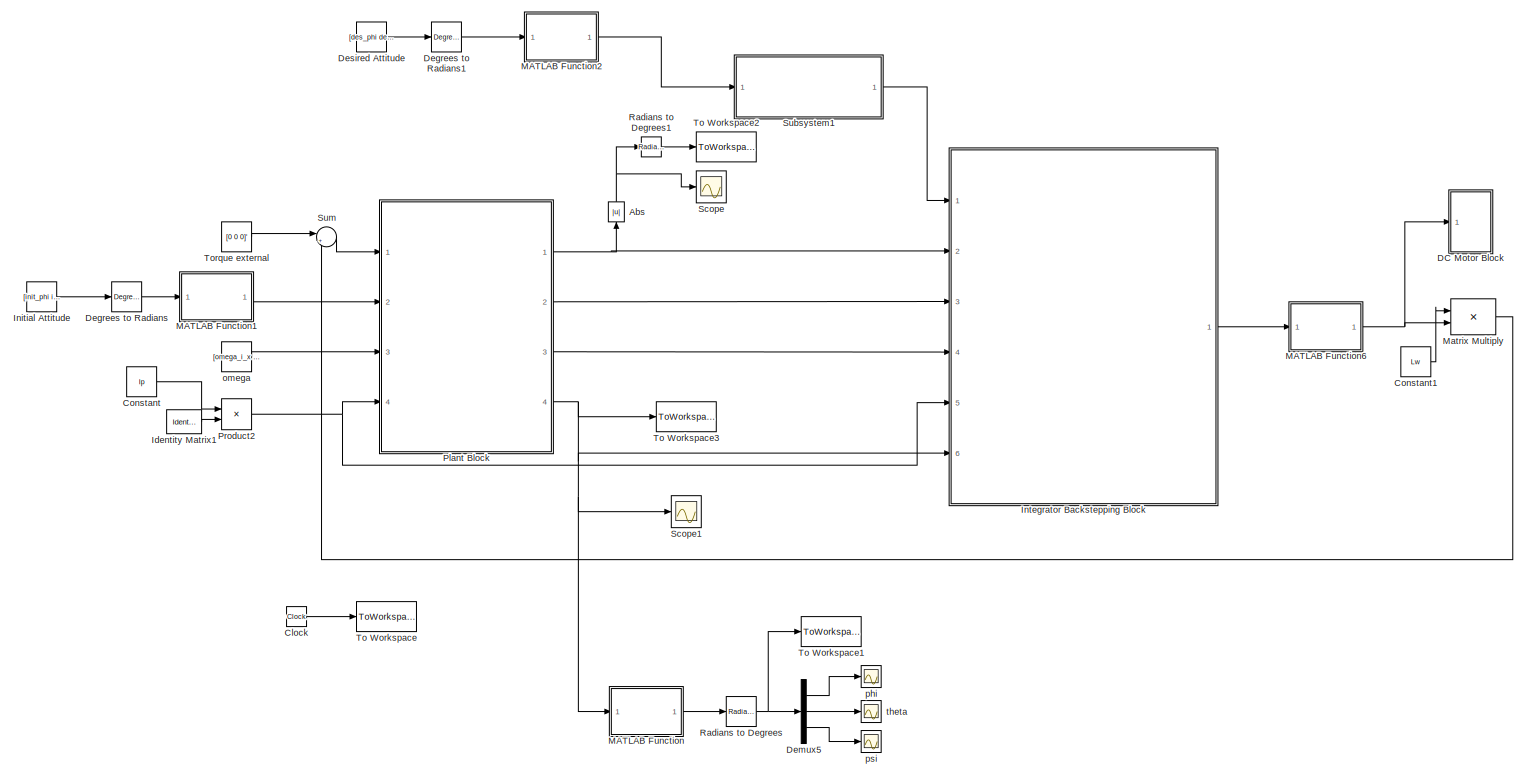
[diagram: root canvas - part 1/1, most of the canvas]
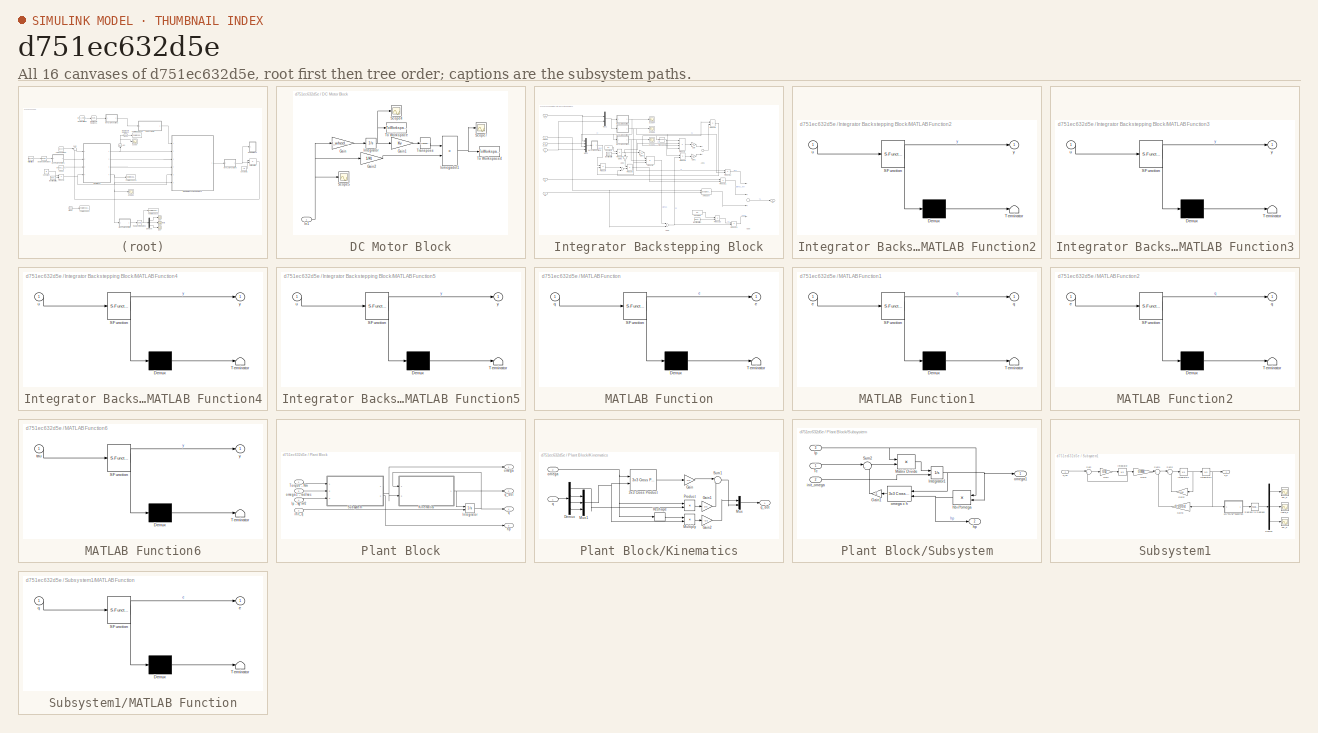
[diagram: thumbnail index - all 16 canvases of the model, root first then tree order]
MODEL slx_d751ec632d5e
KIND model
CONFIG AbsTol = auto
CONFIG EnableMultiTasking = off
CONFIG FixedStep = 1/Ts
CONFIG MaxStep = auto
CONFIG MinStep = auto
CONFIG RelTol = 1e-3
CONFIG SampleTimeConstraint = Unconstrained
CONFIG Solver = VariableStepAuto
CONFIG SolverName = VariableStepAuto
CONFIG StartTime = 0.0
CONFIG StopTime = Tmax
BLOCK [Abs] Abs
  SaturateOnIntegerOverflow = off
BLOCK [Clock] Clock
BLOCK [Constant] Constant
  Value = Ip
BLOCK [Constant] Constant1
  Value = Lw
BLOCK [SubSystem] DC Motor Block
  Ports = [1]
  RequestExecContextInheritance = off
BLOCK [Gain] DC Motor Block/Gain
  Gain = I_wheel/I_motor
  OutDataTypeStr = Inherit: Inherit via internal rule
  ParamDataTypeStr = Inherit: Inherit via internal rule
  SaturateOnIntegerOverflow = off
BLOCK [Gain] DC Motor Block/Gain1
  Gain = Kv
  OutDataTypeStr = Inherit: Inherit via internal rule
  ParamDataTypeStr = Inherit: Inherit via internal rule
  SaturateOnIntegerOverflow = off
BLOCK [Gain] DC Motor Block/Gain2
  Gain = 1/Kt
  OutDataTypeStr = Inherit: Inherit via internal rule
  ParamDataTypeStr = Inherit: Inherit via internal rule
  SaturateOnIntegerOverflow = off
BLOCK [Inport] DC Motor Block/In1
  IconDisplay = Port number
BLOCK [Integrator] DC Motor Block/Integrator
  Ports = [1, 1]
BLOCK [Product] DC Motor Block/Iomegadot1
  InputSameDT = off
  Multiplication = Matrix(*)
  OutDataTypeStr = Inherit: Inherit via internal rule
  Ports = [2, 1]
  RndMeth = Floor
  SaturateOnIntegerOverflow = off
BLOCK [Scope] DC Motor Block/Scope4
  Floating = off
  NumInputPorts = 1
  Ports = [1]
  ScopeSpecificationString = Simulink.scopes.TimeScopeBlockCfg('CurrentConfiguration', extmgr.ConfigurationSet(extmgr.Configuration('Core','General UI',true),extmgr.Configuration('Core','Source UI',true),extmgr.Configuration('Sources','WiredSimulink',true,'DataLoggingVariableName','ScopeData1'),extmgr.Configuration('Visuals','Time Domain',true,'SerializedDisplays',{struct('MinYLimReal','-128.41253','MaxYLimReal','172.76244','...<+1430ch>
BLOCK [Scope] DC Motor Block/Scope5
  Floating = off
  NumInputPorts = 1
  Ports = [1]
  ScopeSpecificationString = Simulink.scopes.TimeScopeBlockCfg('CurrentConfiguration', extmgr.ConfigurationSet(extmgr.Configuration('Core','General UI',true),extmgr.Configuration('Core','Source UI',true),extmgr.Configuration('Sources','WiredSimulink',true,'DataLoggingVariableName','ScopeData2'),extmgr.Configuration('Visuals','Time Domain',true,'SerializedDisplays',{struct('MinYLimReal','-0.00116','MaxYLimReal','0.00107','YLab...<+1407ch>
BLOCK [Scope] DC Motor Block/Scope7
  Floating = off
  NumInputPorts = 1
  Ports = [1]
  ScopeSpecificationString = Simulink.scopes.TimeScopeBlockCfg('CurrentConfiguration', extmgr.ConfigurationSet(extmgr.Configuration('Core','General UI',true),extmgr.Configuration('Core','Source UI',true),extmgr.Configuration('Sources','WiredSimulink',true,'DataLoggingVariableName','ScopeData4'),extmgr.Configuration('Visuals','Time Domain',true,'SerializedDisplays',{struct('MinYLimReal','-0.18076','MaxYLimReal','0.16852','YLab...<+1369ch>
BLOCK [ToWorkspace] DC Motor Block/To Workspace
  FixptAsFi = on
  MaxDataPoints = inf
  Ports = [1]
  SampleTime = -1
  Save2DSignal = 3-D array (concatenate along third dimension)
  VariableName = wheel_speed
BLOCK [ToWorkspace] DC Motor Block/To Workspace4
  FixptAsFi = on
  MaxDataPoints = inf
  Ports = [1]
  SampleTime = -1
  Save2DSignal = 3-D array (concatenate along third dimension)
  VariableName = power
BLOCK [Math] DC Motor Block/Transpose
  Operator = transpose
  Ports = [1, 1]
BLOCK [Reference] Degrees to Radians  REF=simulink_extras/Transformations/Degrees to
Radians
  Ports = [1, 1]
  SourceBlock = simulink_extras/Transformations/Degrees to\nRadians
  SourceProductBaseCode = SL
  SourceProductName = Simulink
  SourceType = DegreesToRadians
BLOCK [Reference] Degrees to Radians1  REF=simulink_extras/Transformations/Degrees to
Radians
  Ports = [1, 1]
  SourceBlock = simulink_extras/Transformations/Degrees to\nRadians
  SourceProductBaseCode = SL
  SourceProductName = Simulink
  SourceType = DegreesToRadians
BLOCK [Demux] Demux5
  DisplayOption = bar
  Outputs = 3
  Ports = [1, 3]
BLOCK [Constant] Desired Attitude
  Value = [des_phi des_theta des_psi]'
BLOCK [Reference] Identity Matrix1  REF=dspmtrx3/Identity Matrix
  Ports = [0, 1]
  SourceBlock = dspmtrx3/Identity Matrix
  SourceProductBaseCode = DS
  SourceProductName = DSP System Toolbox
  SourceType = Identity Matrix
BLOCK [Constant] Initial Attitude
  Value = [init_phi init_theta init_psi]'
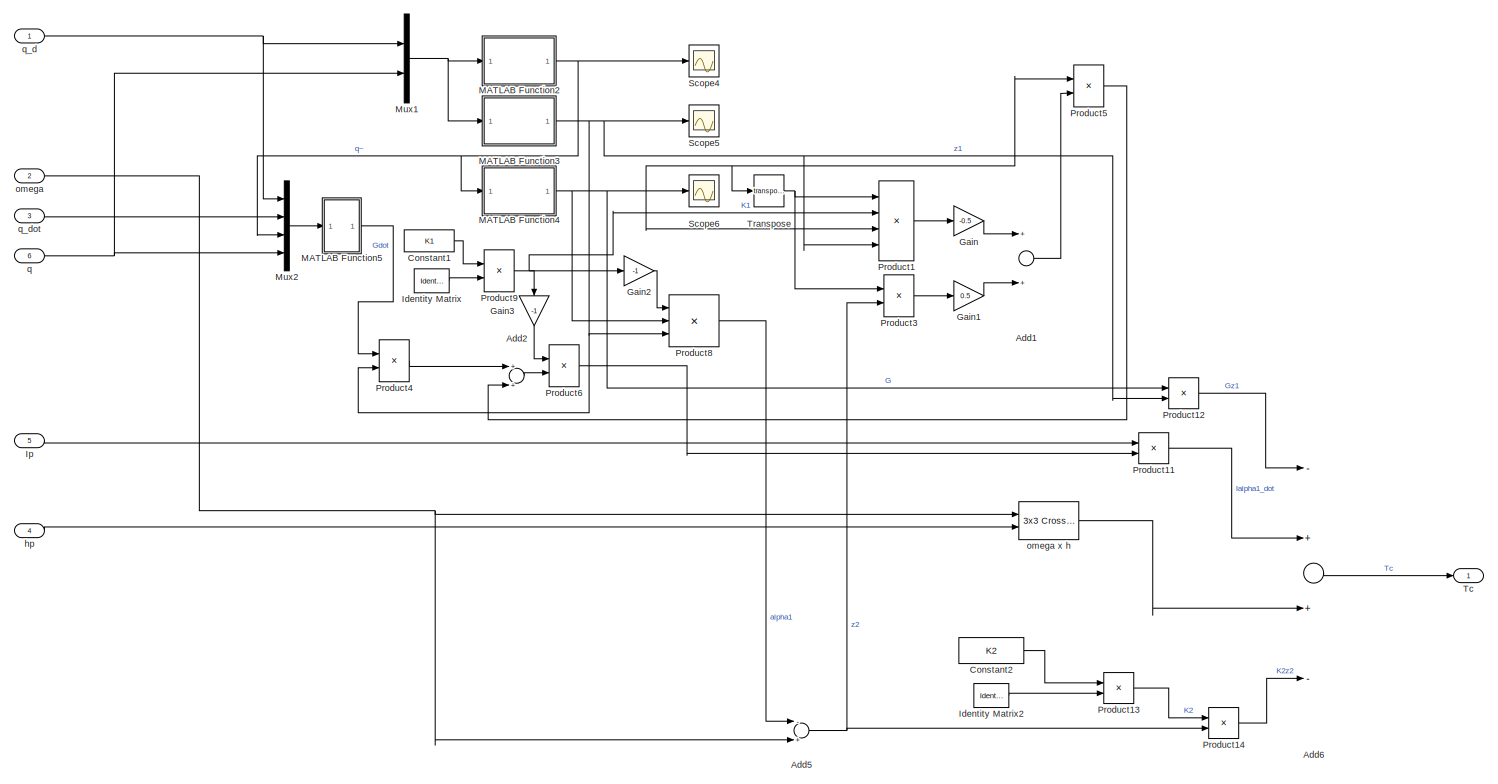
[diagram: Integrator Backstepping Block - part 1/1, most of the canvas]
BLOCK [SubSystem] Integrator Backstepping Block
  Ports = [6, 1]
  RequestExecContextInheritance = off
BLOCK [Sum] Integrator Backstepping Block/Add1
  InputSameDT = off
  OutDataTypeStr = Inherit: Inherit via internal rule
  Ports = [2, 1]
  SaturateOnIntegerOverflow = off
BLOCK [Sum] Integrator Backstepping Block/Add2
  InputSameDT = off
  OutDataTypeStr = Inherit: Inherit via internal rule
  Ports = [2, 1]
  SaturateOnIntegerOverflow = off
BLOCK [Sum] Integrator Backstepping Block/Add5
  InputSameDT = off
  Inputs = -+
  OutDataTypeStr = Inherit: Inherit via internal rule
  Ports = [2, 1]
  SaturateOnIntegerOverflow = off
BLOCK [Sum] Integrator Backstepping Block/Add6
  InputSameDT = off
  Inputs = -++-
  OutDataTypeStr = Inherit: Inherit via internal rule
  Ports = [4, 1]
  SaturateOnIntegerOverflow = off
BLOCK [Constant] Integrator Backstepping Block/Constant1
  Value = K1
BLOCK [Constant] Integrator Backstepping Block/Constant2
  Value = K2
BLOCK [Gain] Integrator Backstepping Block/Gain
  Gain = -0.5
  OutDataTypeStr = Inherit: Inherit via internal rule
  ParamDataTypeStr = Inherit: Inherit via internal rule
  SaturateOnIntegerOverflow = off
BLOCK [Gain] Integrator Backstepping Block/Gain1
  Gain = 0.5
  OutDataTypeStr = Inherit: Inherit via internal rule
  ParamDataTypeStr = Inherit: Inherit via internal rule
  SaturateOnIntegerOverflow = off
BLOCK [Gain] Integrator Backstepping Block/Gain2
  Gain = -1
  OutDataTypeStr = Inherit: Inherit via internal rule
  ParamDataTypeStr = Inherit: Inherit via internal rule
  SaturateOnIntegerOverflow = off
BLOCK [Gain] Integrator Backstepping Block/Gain3
  Gain = -1
  OutDataTypeStr = Inherit: Inherit via internal rule
  ParamDataTypeStr = Inherit: Inherit via internal rule
  SaturateOnIntegerOverflow = off
BLOCK [Reference] Integrator Backstepping Block/Identity Matrix  REF=dspmtrx3/Identity Matrix
  Ports = [0, 1]
  SourceBlock = dspmtrx3/Identity Matrix
  SourceProductBaseCode = DS
  SourceProductName = DSP System Toolbox
  SourceType = Identity Matrix
BLOCK [Reference] Integrator Backstepping Block/Identity Matrix2  REF=dspmtrx3/Identity Matrix
  Ports = [0, 1]
  SourceBlock = dspmtrx3/Identity Matrix
  SourceProductBaseCode = DS
  SourceProductName = DSP System Toolbox
  SourceType = Identity Matrix
BLOCK [Inport] Integrator Backstepping Block/Ip
  IconDisplay = Port number
  Port = 5
BLOCK [SubSystem] Integrator Backstepping Block/MATLAB Function2
  ErrorFcn = Stateflow.Translate.translate
  PermitHierarchicalResolution = ExplicitOnly
  Ports = [1, 1]
  RequestExecContextInheritance = off
  SFBlockType = MATLAB Function
  TreatAsAtomicUnit = on
BLOCK [Demux] Integrator Backstepping Block/MATLAB Function2/ Demux 
  Outputs = 1
  Ports = [1, 1]
BLOCK [S-Function] Integrator Backstepping Block/MATLAB Function2/ SFunction 
  EnableBusSupport = on
  FunctionName = sf_sfun
  PortCounts = [1 2]
  Ports = [1, 2]
  SFcnIsStateOwnerBlock = off
  SFunctionDeploymentMode = off
  Tag = Stateflow S-Function backstepping 4
BLOCK [Terminator] Integrator Backstepping Block/MATLAB Function2/ Terminator 
BLOCK [Inport] Integrator Backstepping Block/MATLAB Function2/u
  IconDisplay = Port number
BLOCK [Outport] Integrator Backstepping Block/MATLAB Function2/y
  IconDisplay = Port number
BLOCK [SubSystem] Integrator Backstepping Block/MATLAB Function3
  ErrorFcn = Stateflow.Translate.translate
  PermitHierarchicalResolution = ExplicitOnly
  Ports = [1, 1]
  RequestExecContextInheritance = off
  SFBlockType = MATLAB Function
  TreatAsAtomicUnit = on
BLOCK [Demux] Integrator Backstepping Block/MATLAB Function3/ Demux 
  Outputs = 1
  Ports = [1, 1]
BLOCK [S-Function] Integrator Backstepping Block/MATLAB Function3/ SFunction 
  EnableBusSupport = on
  FunctionName = sf_sfun
  PortCounts = [1 2]
  Ports = [1, 2]
  SFcnIsStateOwnerBlock = off
  SFunctionDeploymentMode = off
  Tag = Stateflow S-Function backstepping 5
BLOCK [Terminator] Integrator Backstepping Block/MATLAB Function3/ Terminator 
BLOCK [Inport] Integrator Backstepping Block/MATLAB Function3/u
  IconDisplay = Port number
BLOCK [Outport] Integrator Backstepping Block/MATLAB Function3/y
  IconDisplay = Port number
BLOCK [SubSystem] Integrator Backstepping Block/MATLAB Function4
  ErrorFcn = Stateflow.Translate.translate
  PermitHierarchicalResolution = ExplicitOnly
  Ports = [1, 1]
  RequestExecContextInheritance = off
  SFBlockType = MATLAB Function
  TreatAsAtomicUnit = on
BLOCK [Demux] Integrator Backstepping Block/MATLAB Function4/ Demux 
  Outputs = 1
  Ports = [1, 1]
BLOCK [S-Function] Integrator Backstepping Block/MATLAB Function4/ SFunction 
  EnableBusSupport = on
  FunctionName = sf_sfun
  PortCounts = [1 2]
  Ports = [1, 2]
  SFcnIsStateOwnerBlock = off
  SFunctionDeploymentMode = off
  Tag = Stateflow S-Function backstepping 7
BLOCK [Terminator] Integrator Backstepping Block/MATLAB Function4/ Terminator 
BLOCK [Inport] Integrator Backstepping Block/MATLAB Function4/u
  IconDisplay = Port number
BLOCK [Outport] Integrator Backstepping Block/MATLAB Function4/y
  IconDisplay = Port number
BLOCK [SubSystem] Integrator Backstepping Block/MATLAB Function5
  ErrorFcn = Stateflow.Translate.translate
  PermitHierarchicalResolution = ExplicitOnly
  Ports = [1, 1]
  RequestExecContextInheritance = off
  SFBlockType = MATLAB Function
  TreatAsAtomicUnit = on
BLOCK [Demux] Integrator Backstepping Block/MATLAB Function5/ Demux 
  Outputs = 1
  Ports = [1, 1]
BLOCK [S-Function] Integrator Backstepping Block/MATLAB Function5/ SFunction 
  EnableBusSupport = on
  FunctionName = sf_sfun
  PortCounts = [1 2]
  Ports = [1, 2]
  SFcnIsStateOwnerBlock = off
  SFunctionDeploymentMode = off
  Tag = Stateflow S-Function backstepping 8
BLOCK [Terminator] Integrator Backstepping Block/MATLAB Function5/ Terminator 
BLOCK [Inport] Integrator Backstepping Block/MATLAB Function5/u
  IconDisplay = Port number
BLOCK [Outport] Integrator Backstepping Block/MATLAB Function5/y
  IconDisplay = Port number
BLOCK [Mux] Integrator Backstepping Block/Mux1
  DisplayOption = bar
  Inputs = 2
  Ports = [2, 1]
BLOCK [Mux] Integrator Backstepping Block/Mux2
  DisplayOption = bar
  Ports = [4, 1]
BLOCK [Product] Integrator Backstepping Block/Product1
  InputSameDT = off
  Inputs = 4
  Multiplication = Matrix(*)
  OutDataTypeStr = Inherit: Inherit via internal rule
  Ports = [4, 1]
  RndMeth = Floor
  SaturateOnIntegerOverflow = off
BLOCK [Product] Integrator Backstepping Block/Product11
  InputSameDT = off
  Multiplication = Matrix(*)
  OutDataTypeStr = Inherit: Inherit via internal rule
  Ports = [2, 1]
  RndMeth = Floor
  SaturateOnIntegerOverflow = off
BLOCK [Product] Integrator Backstepping Block/Product12
  InputSameDT = off
  Multiplication = Matrix(*)
  OutDataTypeStr = Inherit: Inherit via internal rule
  Ports = [2, 1]
  RndMeth = Floor
  SaturateOnIntegerOverflow = off
BLOCK [Product] Integrator Backstepping Block/Product13
  InputSameDT = off
  OutDataTypeStr = Inherit: Inherit via internal rule
  Ports = [2, 1]
  RndMeth = Floor
  SaturateOnIntegerOverflow = off
BLOCK [Product] Integrator Backstepping Block/Product14
  InputSameDT = off
  Multiplication = Matrix(*)
  OutDataTypeStr = Inherit: Inherit via internal rule
  Ports = [2, 1]
  RndMeth = Floor
  SaturateOnIntegerOverflow = off
BLOCK [Product] Integrator Backstepping Block/Product3
  InputSameDT = off
  Multiplication = Matrix(*)
  OutDataTypeStr = Inherit: Inherit via internal rule
  Ports = [2, 1]
  RndMeth = Floor
  SaturateOnIntegerOverflow = off
BLOCK [Product] Integrator Backstepping Block/Product4
  InputSameDT = off
  Multiplication = Matrix(*)
  OutDataTypeStr = Inherit: Inherit via internal rule
  Ports = [2, 1]
  RndMeth = Floor
  SaturateOnIntegerOverflow = off
BLOCK [Product] Integrator Backstepping Block/Product5
  InputSameDT = off
  Multiplication = Matrix(*)
  OutDataTypeStr = Inherit: Inherit via internal rule
  Ports = [2, 1]
  RndMeth = Floor
  SaturateOnIntegerOverflow = off
BLOCK [Product] Integrator Backstepping Block/Product6
  InputSameDT = off
  Multiplication = Matrix(*)
  OutDataTypeStr = Inherit: Inherit via internal rule
  Ports = [2, 1]
  RndMeth = Floor
  SaturateOnIntegerOverflow = off
BLOCK [Product] Integrator Backstepping Block/Product8
  InputSameDT = off
  Inputs = 3
  Multiplication = Matrix(*)
  OutDataTypeStr = Inherit: Inherit via internal rule
  Ports = [3, 1]
  RndMeth = Floor
  SaturateOnIntegerOverflow = off
BLOCK [Product] Integrator Backstepping Block/Product9
  InputSameDT = off
  OutDataTypeStr = Inherit: Inherit via internal rule
  Ports = [2, 1]
  RndMeth = Floor
  SaturateOnIntegerOverflow = off
BLOCK [Scope] Integrator Backstepping Block/Scope4
  Floating = off
  NumInputPorts = 1
  Ports = [1]
  ScopeSpecificationString = Simulink.scopes.TimeScopeBlockCfg('CurrentConfiguration', extmgr.ConfigurationSet(extmgr.Configuration('Core','General UI',true),extmgr.Configuration('Core','Source UI',true),extmgr.Configuration('Sources','WiredSimulink',true,'DataLoggingVariableName','ScopeData4'),extmgr.Configuration('Visuals','Time Domain',true,'SerializedDisplays',{struct('MinYLimReal','0.0533483536','MaxYLimReal','0.05334835...<+1439ch>
BLOCK [Scope] Integrator Backstepping Block/Scope5
  Floating = off
  NumInputPorts = 1
  Ports = [1]
  ScopeSpecificationString = Simulink.scopes.TimeScopeBlockCfg('CurrentConfiguration', extmgr.ConfigurationSet(extmgr.Configuration('Core','General UI',true),extmgr.Configuration('Core','Source UI',true),extmgr.Configuration('Sources','WiredSimulink',true,'DataLoggingVariableName','ScopeData5'),extmgr.Configuration('Visuals','Time Domain',true,'SerializedDisplays',{struct('MinYLimReal','-0.14123','MaxYLimReal','1.1268','YLabe...<+1380ch>
BLOCK [Scope] Integrator Backstepping Block/Scope6
  Floating = off
  NumInputPorts = 1
  Ports = [1]
  ScopeSpecificationString = Simulink.scopes.TimeScopeBlockCfg('CurrentConfiguration', extmgr.ConfigurationSet(extmgr.Configuration('Core','General UI',true),extmgr.Configuration('Core','Source UI',true),extmgr.Configuration('Sources','WiredSimulink',true,'DataLoggingVariableName','ScopeData6'),extmgr.Configuration('Visuals','Time Domain',true,'SerializedDisplays',{struct('MinYLimReal','-0.21955','MaxYLimReal','0.21956','YLab...<+1430ch>
BLOCK [Outport] Integrator Backstepping Block/Tc
  IconDisplay = Port number
BLOCK [Math] Integrator Backstepping Block/Transpose
  Operator = transpose
  Ports = [1, 1]
BLOCK [Inport] Integrator Backstepping Block/hp
  IconDisplay = Port number
  Port = 4
BLOCK [Inport] Integrator Backstepping Block/omega
  IconDisplay = Port number
  Port = 2
BLOCK [Reference] Integrator Backstepping Block/omega x h  REF=sharedutil/3x3 Cross Product
  Ports = [2, 1]
  SourceBlock = sharedutil/3x3 Cross Product
  SourceProductBaseCode = AE
  SourceProductName = Aerospace Blockset
  SourceType = CrossProduct
BLOCK [Inport] Integrator Backstepping Block/q
  IconDisplay = Port number
  Port = 6
BLOCK [Inport] Integrator Backstepping Block/q_d
  IconDisplay = Port number
BLOCK [Inport] Integrator Backstepping Block/q_dot
  IconDisplay = Port number
  Port = 3
BLOCK [SubSystem] MATLAB Function
  ErrorFcn = Stateflow.Translate.translate
  PermitHierarchicalResolution = ExplicitOnly
  Ports = [1, 1]
  RequestExecContextInheritance = off
  SFBlockType = MATLAB Function
  TreatAsAtomicUnit = on
BLOCK [Demux] MATLAB Function/ Demux 
  Outputs = 1
  Ports = [1, 1]
BLOCK [S-Function] MATLAB Function/ SFunction 
  EnableBusSupport = on
  FunctionName = sf_sfun
  PortCounts = [1 2]
  Ports = [1, 2]
  SFcnIsStateOwnerBlock = off
  SFunctionDeploymentMode = off
  Tag = Stateflow S-Function backstepping 6
BLOCK [Terminator] MATLAB Function/ Terminator 
BLOCK [Outport] MATLAB Function/e
  IconDisplay = Port number
BLOCK [Inport] MATLAB Function/q
  IconDisplay = Port number
BLOCK [SubSystem] MATLAB Function1
  ErrorFcn = Stateflow.Translate.translate
  PermitHierarchicalResolution = ExplicitOnly
  Ports = [1, 1]
  RequestExecContextInheritance = off
  SFBlockType = MATLAB Function
  TreatAsAtomicUnit = on
BLOCK [Demux] MATLAB Function1/ Demux 
  Outputs = 1
  Ports = [1, 1]
BLOCK [S-Function] MATLAB Function1/ SFunction 
  EnableBusSupport = on
  FunctionName = sf_sfun
  PortCounts = [1 2]
  Ports = [1, 2]
  SFcnIsStateOwnerBlock = off
  SFunctionDeploymentMode = off
  Tag = Stateflow S-Function backstepping 3
BLOCK [Terminator] MATLAB Function1/ Terminator 
BLOCK [Inport] MATLAB Function1/e
  IconDisplay = Port number
BLOCK [Outport] MATLAB Function1/q
  IconDisplay = Port number
BLOCK [SubSystem] MATLAB Function2
  ErrorFcn = Stateflow.Translate.translate
  PermitHierarchicalResolution = ExplicitOnly
  Ports = [1, 1]
  RequestExecContextInheritance = off
  SFBlockType = MATLAB Function
  TreatAsAtomicUnit = on
BLOCK [Demux] MATLAB Function2/ Demux 
  Outputs = 1
  Ports = [1, 1]
BLOCK [S-Function] MATLAB Function2/ SFunction 
  EnableBusSupport = on
  FunctionName = sf_sfun
  PortCounts = [1 2]
  Ports = [1, 2]
  SFcnIsStateOwnerBlock = off
  SFunctionDeploymentMode = off
  Tag = Stateflow S-Function backstepping 2
BLOCK [Terminator] MATLAB Function2/ Terminator 
BLOCK [Inport] MATLAB Function2/e
  IconDisplay = Port number
BLOCK [Outport] MATLAB Function2/q
  IconDisplay = Port number
BLOCK [SubSystem] MATLAB Function6
  ErrorFcn = Stateflow.Translate.translate
  PermitHierarchicalResolution = ExplicitOnly
  Ports = [1, 1]
  RequestExecContextInheritance = off
  SFBlockType = MATLAB Function
  TreatAsAtomicUnit = on
BLOCK [Demux] MATLAB Function6/ Demux 
  Outputs = 1
  Ports = [1, 1]
BLOCK [S-Function] MATLAB Function6/ SFunction 
  EnableBusSupport = on
  FunctionName = sf_sfun
  PortCounts = [1 2]
  Ports = [1, 2]
  SFcnIsStateOwnerBlock = off
  SFunctionDeploymentMode = off
  Tag = Stateflow S-Function backstepping 9
BLOCK [Terminator] MATLAB Function6/ Terminator 
BLOCK [Inport] MATLAB Function6/tau
  IconDisplay = Port number
BLOCK [Outport] MATLAB Function6/y
  IconDisplay = Port number
BLOCK [Product] Matrix Multiply
  InputSameDT = off
  Multiplication = Matrix(*)
  OutDataTypeStr = Inherit: Inherit via internal rule
  Ports = [2, 1]
  RndMeth = Floor
  SaturateOnIntegerOverflow = off
BLOCK [SubSystem] Plant Block
  Ports = [4, 4]
  RequestExecContextInheritance = off
BLOCK [Integrator] Plant Block/Integrator
  InitialConditionSource = external
  Ports = [2, 1]
BLOCK [Inport] Plant Block/Ip - kg m^2
  IconDisplay = Port number
  Port = 4
BLOCK [SubSystem] Plant Block/Kinematics
  Ports = [2, 1]
  RequestExecContextInheritance = off
BLOCK [Reference] Plant Block/Kinematics/3x3 Cross Product  REF=sharedutil/3x3 Cross Product
  Ports = [2, 1]
  SourceBlock = sharedutil/3x3 Cross Product
  SourceProductBaseCode = AE
  SourceProductName = Aerospace Blockset
  SourceType = CrossProduct
BLOCK [Demux] Plant Block/Kinematics/Demux
  DisplayOption = bar
  Ports = [1, 4]
BLOCK [Gain] Plant Block/Kinematics/Gain
  Gain = -1/2
  OutDataTypeStr = Inherit: Inherit via internal rule
  ParamDataTypeStr = Inherit: Inherit via internal rule
  SaturateOnIntegerOverflow = off
BLOCK [Gain] Plant Block/Kinematics/Gain1
  Gain = 1/2
  OutDataTypeStr = Inherit: Inherit via internal rule
  ParamDataTypeStr = Inherit: Inherit via internal rule
  SaturateOnIntegerOverflow = off
BLOCK [Gain] Plant Block/Kinematics/Gain2
  Gain = -1/2
  OutDataTypeStr = Inherit: Inherit via internal rule
  ParamDataTypeStr = Inherit: Inherit via internal rule
  SaturateOnIntegerOverflow = off
BLOCK [Product] Plant Block/Kinematics/Multiply
  InputSameDT = off
  Multiplication = Matrix(*)
  OutDataTypeStr = Inherit: Inherit via internal rule
  Ports = [2, 1]
  RndMeth = Floor
  SaturateOnIntegerOverflow = off
BLOCK [Mux] Plant Block/Kinematics/Mux
  DisplayOption = bar
  Inputs = 2
  Ports = [2, 1]
BLOCK [Mux] Plant Block/Kinematics/Mux1
  DisplayOption = bar
  Inputs = 3
  Ports = [3, 1]
BLOCK [Product] Plant Block/Kinematics/Product
  InputSameDT = off
  Multiplication = Matrix(*)
  OutDataTypeStr = Inherit: Inherit via internal rule
  Ports = [2, 1]
  RndMeth = Floor
  SaturateOnIntegerOverflow = off
BLOCK [Reshape] Plant Block/Kinematics/Reshape
  OutputDimensionality = Row vector (2-D)
  Ports = [1, 1]
BLOCK [Sum] Plant Block/Kinematics/Sum1
  IconShape = round
  InputSameDT = off
  Inputs = |++
  OutDataTypeStr = Inherit: Inherit via internal rule
  Ports = [2, 1]
  SaturateOnIntegerOverflow = off
BLOCK [Inport] Plant Block/Kinematics/omega
  IconDisplay = Port number
  Port = 2
BLOCK [Inport] Plant Block/Kinematics/q
  IconDisplay = Port number
BLOCK [Outport] Plant Block/Kinematics/q_dot
  IconDisplay = Port number
BLOCK [SubSystem] Plant Block/Subsystem
  Ports = [3, 2]
  RequestExecContextInheritance = off
BLOCK [Gain] Plant Block/Subsystem/Gain1
  Gain = -1
  OutDataTypeStr = Inherit: Inherit via internal rule
  ParamDataTypeStr = Inherit: Inherit via internal rule
  SaturateOnIntegerOverflow = off
BLOCK [Integrator] Plant Block/Subsystem/Integrator1
  InitialConditionSource = external
  Ports = [2, 1]
  ZeroCross = off
BLOCK [Inport] Plant Block/Subsystem/Ip
  IconDisplay = Port number
  Port = 3
BLOCK [Product] Plant Block/Subsystem/Matrix Divide
  InputSameDT = off
  Inputs = /*
  Multiplication = Matrix(*)
  OutDataTypeStr = Inherit: Inherit via internal rule
  Ports = [2, 1]
  RndMeth = Floor
  SaturateOnIntegerOverflow = off
BLOCK [Sum] Plant Block/Subsystem/Sum2
  IconShape = round
  InputSameDT = off
  Inputs = |++
  OutDataTypeStr = Inherit: Inherit via internal rule
  Ports = [2, 1]
  SaturateOnIntegerOverflow = off
BLOCK [Inport] Plant Block/Subsystem/Tc
  IconDisplay = Port number
BLOCK [Product] Plant Block/Subsystem/hb=I*omega
  InputSameDT = off
  Multiplication = Matrix(*)
  OutDataTypeStr = Inherit: Inherit via internal rule
  Ports = [2, 1]
  RndMeth = Floor
  SaturateOnIntegerOverflow = off
BLOCK [Outport] Plant Block/Subsystem/hp
  IconDisplay = Port number
  Port = 2
BLOCK [Inport] Plant Block/Subsystem/init_omega
  IconDisplay = Port number
  Port = 2
BLOCK [Reference] Plant Block/Subsystem/omega x h  REF=sharedutil/3x3 Cross Product
  Ports = [2, 1]
  SourceBlock = sharedutil/3x3 Cross Product
  SourceProductBaseCode = AE
  SourceProductName = Aerospace Blockset
  SourceType = CrossProduct
BLOCK [Outport] Plant Block/Subsystem/omega1
  IconDisplay = Port number
BLOCK [Inport] Plant Block/Torque - Nm
  IconDisplay = Port number
BLOCK [Outport] Plant Block/hp
  IconDisplay = Port number
  Port = 3
BLOCK [Inport] Plant Block/init_q
  IconDisplay = Port number
  Port = 2
BLOCK [Outport] Plant Block/omega
  IconDisplay = Port number
BLOCK [Inport] Plant Block/omega1 - rad//sec
  IconDisplay = Port number
  Port = 3
BLOCK [Outport] Plant Block/q
  IconDisplay = Port number
  Port = 4
BLOCK [Outport] Plant Block/q_dot
  IconDisplay = Port number
  Port = 2
BLOCK [Product] Product2
  InputSameDT = off
  OutDataTypeStr = Inherit: Inherit via internal rule
  Ports = [2, 1]
  RndMeth = Floor
  SaturateOnIntegerOverflow = off
BLOCK [Reference] Radians to Degrees  REF=simulink_extras/Transformations/Radians
to Degrees
  Ports = [1, 1]
  SourceBlock = simulink_extras/Transformations/Radians\nto Degrees
  SourceProductBaseCode = SL
  SourceProductName = Simulink
  SourceType = RadiansToDegrees
BLOCK [Reference] Radians to Degrees1  REF=simulink_extras/Transformations/Radians
to Degrees
  Ports = [1, 1]
  SourceBlock = simulink_extras/Transformations/Radians\nto Degrees
  SourceProductBaseCode = SL
  SourceProductName = Simulink
  SourceType = RadiansToDegrees
BLOCK [Scope] Scope
  Floating = off
  NumInputPorts = 1
  Ports = [1]
  ScopeSpecificationString = Simulink.scopes.TimeScopeBlockCfg('CurrentConfiguration', extmgr.ConfigurationSet(extmgr.Configuration('Core','General UI',true),extmgr.Configuration('Core','Source UI',true),extmgr.Configuration('Sources','WiredSimulink',true,'DataLoggingVariableName','ScopeData1'),extmgr.Configuration('Visuals','Time Domain',true,'SerializedDisplays',{struct('MinYLimReal','-0.00174','MaxYLimReal','0.0157','YLabe...<+1393ch>
BLOCK [Scope] Scope1
  Floating = off
  NumInputPorts = 1
  Ports = [1]
  ScopeSpecificationString = Simulink.scopes.TimeScopeBlockCfg('CurrentConfiguration', extmgr.ConfigurationSet(extmgr.Configuration('Core','General UI',true),extmgr.Configuration('Core','Source UI',true),extmgr.Configuration('Sources','WiredSimulink',true,'DataLoggingVariableName','ScopeData2'),extmgr.Configuration('Visuals','Time Domain',true,'SerializedDisplays',{struct('MinYLimReal','-0.125','MaxYLimReal','1.125','YLabelRe...<+1499ch>
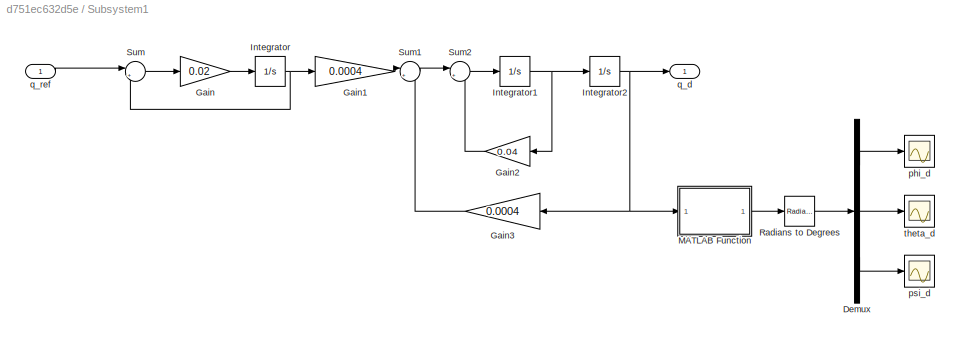
BLOCK [SubSystem] Subsystem1
  Ports = [1, 1]
  RequestExecContextInheritance = off
BLOCK [Demux] Subsystem1/Demux
  DisplayOption = bar
  Outputs = 3
  Ports = [1, 3]
BLOCK [Gain] Subsystem1/Gain
  Gain = 0.02
  OutDataTypeStr = Inherit: Inherit via internal rule
  ParamDataTypeStr = Inherit: Inherit via internal rule
  SaturateOnIntegerOverflow = off
BLOCK [Gain] Subsystem1/Gain1
  Gain = 0.0004
  OutDataTypeStr = Inherit: Inherit via internal rule
  ParamDataTypeStr = Inherit: Inherit via internal rule
  SaturateOnIntegerOverflow = off
BLOCK [Gain] Subsystem1/Gain2
  Gain = 0.04
  OutDataTypeStr = Inherit: Inherit via internal rule
  ParamDataTypeStr = Inherit: Inherit via internal rule
  SaturateOnIntegerOverflow = off
BLOCK [Gain] Subsystem1/Gain3
  Gain = 0.0004
  OutDataTypeStr = Inherit: Inherit via internal rule
  ParamDataTypeStr = Inherit: Inherit via internal rule
  SaturateOnIntegerOverflow = off
BLOCK [Integrator] Subsystem1/Integrator
  Ports = [1, 1]
BLOCK [Integrator] Subsystem1/Integrator1
  Ports = [1, 1]
BLOCK [Integrator] Subsystem1/Integrator2
  Ports = [1, 1]
BLOCK [SubSystem] Subsystem1/MATLAB Function
  ErrorFcn = Stateflow.Translate.translate
  PermitHierarchicalResolution = ExplicitOnly
  Ports = [1, 1]
  RequestExecContextInheritance = off
  SFBlockType = MATLAB Function
  TreatAsAtomicUnit = on
BLOCK [Demux] Subsystem1/MATLAB Function/ Demux 
  Outputs = 1
  Ports = [1, 1]
BLOCK [S-Function] Subsystem1/MATLAB Function/ SFunction 
  EnableBusSupport = on
  FunctionName = sf_sfun
  PortCounts = [1 2]
  Ports = [1, 2]
  SFcnIsStateOwnerBlock = off
  SFunctionDeploymentMode = off
  Tag = Stateflow S-Function backstepping 1
BLOCK [Terminator] Subsystem1/MATLAB Function/ Terminator 
BLOCK [Outport] Subsystem1/MATLAB Function/e
  IconDisplay = Port number
BLOCK [Inport] Subsystem1/MATLAB Function/q
  IconDisplay = Port number
BLOCK [Reference] Subsystem1/Radians to Degrees  REF=simulink_extras/Transformations/Radians
to Degrees
  Ports = [1, 1]
  SourceBlock = simulink_extras/Transformations/Radians\nto Degrees
  SourceProductBaseCode = SL
  SourceProductName = Simulink
  SourceType = RadiansToDegrees
BLOCK [Sum] Subsystem1/Sum
  IconShape = round
  InputSameDT = off
  Inputs = |+-
  OutDataTypeStr = Inherit: Inherit via internal rule
  Ports = [2, 1]
  SaturateOnIntegerOverflow = off
BLOCK [Sum] Subsystem1/Sum1
  IconShape = round
  InputSameDT = off
  Inputs = |+-
  OutDataTypeStr = Inherit: Inherit via internal rule
  Ports = [2, 1]
  SaturateOnIntegerOverflow = off
BLOCK [Sum] Subsystem1/Sum2
  IconShape = round
  InputSameDT = off
  Inputs = |+-
  OutDataTypeStr = Inherit: Inherit via internal rule
  Ports = [2, 1]
  SaturateOnIntegerOverflow = off
BLOCK [Scope] Subsystem1/phi_d
  Floating = off
  NumInputPorts = 1
  Ports = [1]
  ScopeSpecificationString = Simulink.scopes.TimeScopeBlockCfg('CurrentConfiguration', extmgr.ConfigurationSet(extmgr.Configuration('Core','General UI',true),extmgr.Configuration('Core','Source UI',true),extmgr.Configuration('Sources','WiredSimulink',true),extmgr.Configuration('Visuals','Time Domain',true,'SerializedDisplays',{struct('MinYLimReal','79.99992','MaxYLimReal','80.0007','YLabelReal','','MinYLimMag','79.99992','Max...<+1329ch>
BLOCK [Scope] Subsystem1/psi_d
  Floating = off
  NumInputPorts = 1
  Ports = [1]
  ScopeSpecificationString = Simulink.scopes.TimeScopeBlockCfg('CurrentConfiguration', extmgr.ConfigurationSet(extmgr.Configuration('Core','General UI',true),extmgr.Configuration('Core','Source UI',true),extmgr.Configuration('Sources','WiredSimulink',true,'DataLoggingVariableName','ScopeData2'),extmgr.Configuration('Visuals','Time Domain',true,'SerializedDisplays',{struct('MinYLimReal','59.99318','MaxYLimReal','60.00076','YLa...<+1372ch>
BLOCK [Outport] Subsystem1/q_d
  IconDisplay = Port number
BLOCK [Inport] Subsystem1/q_ref
  IconDisplay = Port number
BLOCK [Scope] Subsystem1/theta_d
  Floating = off
  NumInputPorts = 1
  Ports = [1]
  ScopeSpecificationString = Simulink.scopes.TimeScopeBlockCfg('CurrentConfiguration', extmgr.ConfigurationSet(extmgr.Configuration('Core','General UI',true),extmgr.Configuration('Core','Source UI',true),extmgr.Configuration('Sources','WiredSimulink',true,'DataLoggingVariableName','ScopeData1'),extmgr.Configuration('Visuals','Time Domain',true,'SerializedDisplays',{struct('MinYLimReal','-0.48162','MaxYLimReal','4.33456','YLab...<+1366ch>
BLOCK [Sum] Sum
  IconShape = round
  InputSameDT = off
  Inputs = |++
  OutDataTypeStr = Inherit: Inherit via internal rule
  Ports = [2, 1]
  SaturateOnIntegerOverflow = off
BLOCK [ToWorkspace] To Workspace
  FixptAsFi = on
  MaxDataPoints = inf
  Ports = [1]
  SampleTime = -1
  Save2DSignal = 3-D array (concatenate along third dimension)
  VariableName = t
BLOCK [ToWorkspace] To Workspace1
  FixptAsFi = on
  MaxDataPoints = inf
  Ports = [1]
  SampleTime = -1
  Save2DSignal = 3-D array (concatenate along third dimension)
  VariableName = euler
BLOCK [ToWorkspace] To Workspace2
  FixptAsFi = on
  MaxDataPoints = inf
  Ports = [1]
  SampleTime = -1
  Save2DSignal = 3-D array (concatenate along third dimension)
  VariableName = p_speed
BLOCK [ToWorkspace] To Workspace3
  FixptAsFi = on
  MaxDataPoints = inf
  Ports = [1]
  SampleTime = -1
  Save2DSignal = 3-D array (concatenate along third dimension)
  VariableName = q
BLOCK [Constant] Torque external
  Value = [0 0 0]'
BLOCK [Constant] omega 
  Value = [omega_i_x omega_i_y omega_i_z]'
BLOCK [Scope] phi
  Floating = off
  NumInputPorts = 1
  Ports = [1]
  ScopeSpecificationString = Simulink.scopes.TimeScopeBlockCfg('CurrentConfiguration', extmgr.ConfigurationSet(extmgr.Configuration('Core','General UI',true),extmgr.Configuration('Core','Source UI',true),extmgr.Configuration('Sources','WiredSimulink',true,'DataLoggingVariableName','ScopeData7'),extmgr.Configuration('Visuals','Time Domain',true,'SerializedDisplays',{struct('MinYLimReal','-108.19865','MaxYLimReal','108.30664','...<+1400ch>
BLOCK [Scope] psi
  Floating = off
  NumInputPorts = 1
  Ports = [1]
  ScopeSpecificationString = Simulink.scopes.TimeScopeBlockCfg('CurrentConfiguration', extmgr.ConfigurationSet(extmgr.Configuration('Core','General UI',true),extmgr.Configuration('Core','Source UI',true),extmgr.Configuration('Sources','WiredSimulink',true,'DataLoggingVariableName','ScopeData8'),extmgr.Configuration('Visuals','Time Domain',true,'SerializedDisplays',{struct('MinYLimReal','-91.97828','MaxYLimReal','88.0099','YLa...<+1390ch>
BLOCK [Scope] theta
  Floating = off
  NumInputPorts = 1
  Ports = [1]
  ScopeSpecificationString = Simulink.scopes.TimeScopeBlockCfg('CurrentConfiguration', extmgr.ConfigurationSet(extmgr.Configuration('Core','General UI',true),extmgr.Configuration('Core','Source UI',true),extmgr.Configuration('Sources','WiredSimulink',true,'DataLoggingVariableName','ScopeData9'),extmgr.Configuration('Visuals','Time Domain',true,'SerializedDisplays',{struct('MinYLimReal','-4.44167','MaxYLimReal','48.79972','YLa...<+1417ch>
NET Abs:1 -> Radians to Degrees1:1, Scope:1
LINE Clock:1 -> To Workspace:1
LINE Constant1:1 -> Matrix Multiply:1
LINE Constant:1 -> Product2:1
LINE DC Motor Block/Gain1:1 -> DC Motor Block/Transpose:1
LINE DC Motor Block/Gain2:1 -> DC Motor Block/Iomegadot1:2
LINE DC Motor Block/Gain:1 -> DC Motor Block/Integrator:1
NET DC Motor Block/In1:1 -> DC Motor Block/Gain2:1, DC Motor Block/Gain:1, DC Motor Block/Scope5:1
NET DC Motor Block/Integrator:1 -> DC Motor Block/Gain1:1, DC Motor Block/Scope4:1, DC Motor Block/To Workspace:1
NET DC Motor Block/Iomegadot1:1 -> DC Motor Block/Scope7:1, DC Motor Block/To Workspace4:1
LINE DC Motor Block/Transpose:1 -> DC Motor Block/Iomegadot1:1
LINE Degrees to Radians1:1 -> MATLAB Function2:1
LINE Degrees to Radians:1 -> MATLAB Function1:1
LINE Demux5:1 -> phi:1
LINE Demux5:2 -> theta:1
LINE Demux5:3 -> psi:1
LINE Desired Attitude:1 -> Degrees to Radians1:1
LINE Identity Matrix1:1 -> Product2:2
LINE Initial Attitude:1 -> Degrees to Radians:1
LINE Integrator Backstepping Block/Add1:1 -> Integrator Backstepping Block/Product5:2
LINE Integrator Backstepping Block/Add2:1 -> Integrator Backstepping Block/Product6:2
NET Integrator Backstepping Block/Add5:1 -> Integrator Backstepping Block/Product14:2, Integrator Backstepping Block/Product3:2
LINE Integrator Backstepping Block/Add6:1 -> Integrator Backstepping Block/Tc:1
LINE Integrator Backstepping Block/Constant1:1 -> Integrator Backstepping Block/Product9:1
LINE Integrator Backstepping Block/Constant2:1 -> Integrator Backstepping Block/Product13:1
LINE Integrator Backstepping Block/Gain1:1 -> Integrator Backstepping Block/Add1:2
LINE Integrator Backstepping Block/Gain2:1 -> Integrator Backstepping Block/Product8:1
LINE Integrator Backstepping Block/Gain3:1 -> Integrator Backstepping Block/Product6:1
LINE Integrator Backstepping Block/Gain:1 -> Integrator Backstepping Block/Add1:1
LINE Integrator Backstepping Block/Identity Matrix2:1 -> Integrator Backstepping Block/Product13:2
LINE Integrator Backstepping Block/Identity Matrix:1 -> Integrator Backstepping Block/Product9:2
LINE Integrator Backstepping Block/Ip:1 -> Integrator Backstepping Block/Product11:1
NET Integrator Backstepping Block/MATLAB Function2:1 -> Integrator Backstepping Block/MATLAB Function4:1, Integrator Backstepping Block/Mux2:3, Integrator Backstepping Block/Scope4:1
NET Integrator Backstepping Block/MATLAB Function3:1 -> Integrator Backstepping Block/Product12:2, Integrator Backstepping Block/Product1:4, Integrator Backstepping Block/Product4:2, Integrator Backstepping Block/Product8:3, Integrator Backstepping Block/Scope5:1
NET Integrator Backstepping Block/MATLAB Function4:1 -> Integrator Backstepping Block/Product12:1, Integrator Backstepping Block/Product1:3, Integrator Backstepping Block/Product5:1, Integrator Backstepping Block/Product8:2, Integrator Backstepping Block/Scope6:1, Integrator Backstepping Block/Transpose:1
LINE Integrator Backstepping Block/MATLAB Function5:1 -> Integrator Backstepping Block/Product4:1
NET Integrator Backstepping Block/Mux1:1 -> Integrator Backstepping Block/MATLAB Function2:1, Integrator Backstepping Block/MATLAB Function3:1
LINE Integrator Backstepping Block/Mux2:1 -> Integrator Backstepping Block/MATLAB Function5:1
LINE Integrator Backstepping Block/Product11:1 -> Integrator Backstepping Block/Add6:2
LINE Integrator Backstepping Block/Product12:1 -> Integrator Backstepping Block/Add6:1
LINE Integrator Backstepping Block/Product13:1 -> Integrator Backstepping Block/Product14:1
LINE Integrator Backstepping Block/Product14:1 -> Integrator Backstepping Block/Add6:4
LINE Integrator Backstepping Block/Product1:1 -> Integrator Backstepping Block/Gain:1
LINE Integrator Backstepping Block/Product3:1 -> Integrator Backstepping Block/Gain1:1
LINE Integrator Backstepping Block/Product4:1 -> Integrator Backstepping Block/Add2:1
LINE Integrator Backstepping Block/Product5:1 -> Integrator Backstepping Block/Add2:2
LINE Integrator Backstepping Block/Product6:1 -> Integrator Backstepping Block/Product11:2
LINE Integrator Backstepping Block/Product8:1 -> Integrator Backstepping Block/Add5:1
NET Integrator Backstepping Block/Product9:1 -> Integrator Backstepping Block/Gain2:1, Integrator Backstepping Block/Gain3:1, Integrator Backstepping Block/Product1:2
NET Integrator Backstepping Block/Transpose:1 -> Integrator Backstepping Block/Product1:1, Integrator Backstepping Block/Product3:1
LINE Integrator Backstepping Block/hp:1 -> Integrator Backstepping Block/omega x h:2
LINE Integrator Backstepping Block/omega x h:1 -> Integrator Backstepping Block/Add6:3
NET Integrator Backstepping Block/omega:1 -> Integrator Backstepping Block/Add5:2, Integrator Backstepping Block/omega x h:1
NET Integrator Backstepping Block/q:1 -> Integrator Backstepping Block/Mux1:2, Integrator Backstepping Block/Mux2:4
NET Integrator Backstepping Block/q_d:1 -> Integrator Backstepping Block/Mux1:1, Integrator Backstepping Block/Mux2:1
LINE Integrator Backstepping Block/q_dot:1 -> Integrator Backstepping Block/Mux2:2
LINE Integrator Backstepping Block:1 -> MATLAB Function6:1
LINE MATLAB Function1:1 -> Plant Block:2
LINE MATLAB Function2:1 -> Subsystem1:1
NET MATLAB Function6:1 -> DC Motor Block:1, Matrix Multiply:2
LINE MATLAB Function:1 -> Radians to Degrees:1
LINE Matrix Multiply:1 -> Sum:2
NET Plant Block/Integrator:1 -> Plant Block/Kinematics:1, Plant Block/q:1
LINE Plant Block/Ip - kg m^2:1 -> Plant Block/Subsystem:3
LINE Plant Block/Kinematics/3x3 Cross Product:1 -> Plant Block/Kinematics/Gain:1
LINE Plant Block/Kinematics/Demux:1 -> Plant Block/Kinematics/Product:2
LINE Plant Block/Kinematics/Demux:2 -> Plant Block/Kinematics/Mux1:1
LINE Plant Block/Kinematics/Demux:3 -> Plant Block/Kinematics/Mux1:2
LINE Plant Block/Kinematics/Demux:4 -> Plant Block/Kinematics/Mux1:3
LINE Plant Block/Kinematics/Gain1:1 -> Plant Block/Kinematics/Sum1:2
LINE Plant Block/Kinematics/Gain2:1 -> Plant Block/Kinematics/Mux:1
LINE Plant Block/Kinematics/Gain:1 -> Plant Block/Kinematics/Sum1:1
LINE Plant Block/Kinematics/Multiply:1 -> Plant Block/Kinematics/Gain2:1
NET Plant Block/Kinematics/Mux1:1 -> Plant Block/Kinematics/3x3 Cross Product:2, Plant Block/Kinematics/Multiply:2
LINE Plant Block/Kinematics/Mux:1 -> Plant Block/Kinematics/q_dot:1
LINE Plant Block/Kinematics/Product:1 -> Plant Block/Kinematics/Gain1:1
LINE Plant Block/Kinematics/Reshape:1 -> Plant Block/Kinematics/Multiply:1
LINE Plant Block/Kinematics/Sum1:1 -> Plant Block/Kinematics/Mux:2
NET Plant Block/Kinematics/omega:1 -> Plant Block/Kinematics/3x3 Cross Product:1, Plant Block/Kinematics/Product:1, Plant Block/Kinematics/Reshape:1
LINE Plant Block/Kinematics/q:1 -> Plant Block/Kinematics/Demux:1
NET Plant Block/Kinematics:1 -> Plant Block/Integrator:1, Plant Block/q_dot:1
LINE Plant Block/Subsystem/Gain1:1 -> Plant Block/Subsystem/Sum2:2
NET Plant Block/Subsystem/Integrator1:1 -> Plant Block/Subsystem/hb=I*omega:2, Plant Block/Subsystem/omega x h:1, Plant Block/Subsystem/omega1:1
NET Plant Block/Subsystem/Ip:1 -> Plant Block/Subsystem/Matrix Divide:1, Plant Block/Subsystem/hb=I*omega:1
LINE Plant Block/Subsystem/Matrix Divide:1 -> Plant Block/Subsystem/Integrator1:1
LINE Plant Block/Subsystem/Sum2:1 -> Plant Block/Subsystem/Matrix Divide:2
LINE Plant Block/Subsystem/Tc:1 -> Plant Block/Subsystem/Sum2:1
NET Plant Block/Subsystem/hb=I*omega:1 -> Plant Block/Subsystem/hp:1, Plant Block/Subsystem/omega x h:2
LINE Plant Block/Subsystem/init_omega:1 -> Plant Block/Subsystem/Integrator1:2
LINE Plant Block/Subsystem/omega x h:1 -> Plant Block/Subsystem/Gain1:1
NET Plant Block/Subsystem:1 -> Plant Block/Kinematics:2, Plant Block/omega:1
LINE Plant Block/Subsystem:2 -> Plant Block/hp:1
LINE Plant Block/Torque - Nm:1 -> Plant Block/Subsystem:1
LINE Plant Block/init_q:1 -> Plant Block/Integrator:2
LINE Plant Block/omega1 - rad//sec:1 -> Plant Block/Subsystem:2
NET Plant Block:1 -> Abs:1, Integrator Backstepping Block:2
LINE Plant Block:2 -> Integrator Backstepping Block:3
LINE Plant Block:3 -> Integrator Backstepping Block:4
NET Plant Block:4 -> Integrator Backstepping Block:6, MATLAB Function:1, Scope1:1, To Workspace3:1
NET Product2:1 -> Integrator Backstepping Block:5, Plant Block:4
LINE Radians to Degrees1:1 -> To Workspace2:1
NET Radians to Degrees:1 -> Demux5:1, To Workspace1:1
LINE Subsystem1/Demux:1 -> Subsystem1/phi_d:1
LINE Subsystem1/Demux:2 -> Subsystem1/theta_d:1
LINE Subsystem1/Demux:3 -> Subsystem1/psi_d:1
LINE Subsystem1/Gain1:1 -> Subsystem1/Sum1:1
LINE Subsystem1/Gain2:1 -> Subsystem1/Sum2:2
LINE Subsystem1/Gain3:1 -> Subsystem1/Sum1:2
LINE Subsystem1/Gain:1 -> Subsystem1/Integrator:1
NET Subsystem1/Integrator1:1 -> Subsystem1/Gain2:1, Subsystem1/Integrator2:1
NET Subsystem1/Integrator2:1 -> Subsystem1/Gain3:1, Subsystem1/MATLAB Function:1, Subsystem1/q_d:1
NET Subsystem1/Integrator:1 -> Subsystem1/Gain1:1, Subsystem1/Sum:2
LINE Subsystem1/MATLAB Function:1 -> Subsystem1/Radians to Degrees:1
LINE Subsystem1/Radians to Degrees:1 -> Subsystem1/Demux:1
LINE Subsystem1/Sum1:1 -> Subsystem1/Sum2:1
LINE Subsystem1/Sum2:1 -> Subsystem1/Integrator1:1
LINE Subsystem1/Sum:1 -> Subsystem1/Gain:1
LINE Subsystem1/q_ref:1 -> Subsystem1/Sum:1
LINE Subsystem1:1 -> Integrator Backstepping Block:1
LINE Sum:1 -> Plant Block:1
LINE Torque external:1 -> Sum:1
LINE omega :1 -> Plant Block:3
note: NET lines group one-source signal fan-out (src -> all destinations, sorted); 1:1 wires keep LINE
CHART Subsystem1/MATLAB Function states=1 transitions=1
  STATE_LABEL 'eML_blk_kernel()'
  STATE_LABEL 'SCRIPT:\nfunction e = quat2euler(q)\n\nq0 = q(1,:);\nq1 = q(2,:);\nq2 = q(3,:);\nq3 = q(4,:);\n\nphi = atan((2*(q2*q3 + q0*q1))/(q0^2 - q1^2 - q2^2 + q3^2)); \ntheta = asin(-2*(q1*q3 - q0*q2));\npsi = atan((2*(q1*q2 + q0*q3))/(q0^2 + q1^2 -q2^2 - q3^2)); \n\ne = [phi;theta;psi];\n\nend\n'
CHART MATLAB Function2 states=1 transitions=1
  STATE_LABEL 'eML_blk_kernel()'
  STATE_LABEL 'SCRIPT:\nfunction q = euler2quat(e)\n\ne1 = 0.5*e(1,:);\ne2 = 0.5*e(2,:);\ne3 = 0.5*e(3,:);\n\nq0 = (sin(e1)*sin(e2)*sin(e3)) + (cos(e1)*cos(e2)*cos(e3));\nq1 = (-sin(e2)*sin(e3)*cos(e1)) + (sin(e1)*cos(e2)*cos(e3));\nq2 = (sin(e1)*cos(e2)*sin(e3)) + (sin(e2)*cos(e1)*cos(e3));\nq3 = (sin(e3)*cos(e1)*cos(e2)) - (sin(e1)*sin(e2)*cos(e3));\n\nq = [q0;q1;q2;q3];\n\nend\n'
CHART MATLAB Function1 states=1 transitions=1
  STATE_LABEL 'eML_blk_kernel()'
  STATE_LABEL 'SCRIPT:\nfunction q = euler2quat(e)\n\ne1 = 0.5*e(1,:);\ne2 = 0.5*e(2,:);\ne3 = 0.5*e(3,:);\n\nq0 = (sin(e1)*sin(e2)*sin(e3)) + (cos(e1)*cos(e2)*cos(e3));\nq1 = (-sin(e2)*sin(e3)*cos(e1)) + (sin(e1)*cos(e2)*cos(e3));\nq2 = (sin(e1)*cos(e2)*sin(e3)) + (sin(e2)*cos(e1)*cos(e3));\nq3 = (sin(e3)*cos(e1)*cos(e2)) - (sin(e1)*sin(e2)*cos(e3));\n\nq = [q0;q1;q2;q3];\n\nend\n'
CHART Integrator Backstepping Block/MATLAB Function2 states=1 transitions=1
  STATE_LABEL 'eML_blk_kernel()'
  STATE_LABEL "SCRIPT:\nfunction y = q_func(u)\n%d - desired quaternions, a - actual quaternions\nd1 = u(1,:);\nd2 = u(2,:);\nd3 = u(3,:);\nd4 = u(4,:);\na1 = u(5,:);\na2 = u(6,:);\na3 = u(7,:);\na4 = u(8,:);\nepsi_d = [d2;d3;d4];\nepsi_a = [a2;a3;a4];\nS = cross(epsi_d);\nup = (a1*d1) + (epsi_d'*epsi_a);\ndown = (d1*epsi_a) - (a1*epsi_d) - (S*epsi_a);\ny = [up;down];\n"
CHART Integrator Backstepping Block/MATLAB Function3 states=1 transitions=1
  STATE_LABEL 'eML_blk_kernel()'
  STATE_LABEL "SCRIPT:\nfunction y = z1_func(u)\n%d - desired quaternions, a - actual quaternions\nd1 = u(1,:);\nd2 = u(2,:);\nd3 = u(3,:);\nd4 = u(4,:);\na1 = u(5,:);\na2 = u(6,:);\na3 = u(7,:);\na4 = u(8,:);\nepsi_d = [d2;d3;d4];\nepsi_a = [a2;a3;a4];\nS = cross(epsi_d);\nup = (a1*d1) + (epsi_d'*epsi_a);\ndown = (d1*epsi_a) - (a1*epsi_d) - (S*epsi_a);\ny = [1-abs(up);down];\n"
CHART MATLAB Function states=1 transitions=1
  STATE_LABEL 'eML_blk_kernel()'
  STATE_LABEL 'SCRIPT:\nfunction e = quat2euler(q)\n\nq0 = q(1,:);\nq1 = q(2,:);\nq2 = q(3,:);\nq3 = q(4,:);\n\nphi = atan((2*(q2*q3 + q0*q1))/(q0^2 - q1^2 - q2^2 + q3^2)); \ntheta = asin(-2*(q1*q3 - q0*q2));\npsi = atan((2*(q1*q2 + q0*q3))/(q0^2 + q1^2 -q2^2 - q3^2)); \n\ne = [phi;theta;psi];\n\nend\n\n'
CHART Integrator Backstepping Block/MATLAB Function4 states=1 transitions=1
  STATE_LABEL 'eML_blk_kernel()'
  STATE_LABEL "SCRIPT:\nfunction y = G_func(u)\n%d - q~\nI = 2.5*eye(3);\nd1 = u(1,:);\nd2 = u(2,:);\nd3 = u(3,:);\nd4 = u(4,:);\nepsi = [d2;d3;d4];\nS = cross(epsi);\nup = signum(d1)*epsi;\ndown = (d1*I) + S;\ny = [up';down]';\n"
CHART Integrator Backstepping Block/MATLAB Function5 states=1 transitions=1
  STATE_LABEL 'eML_blk_kernel()'
  STATE_LABEL "SCRIPT:\nfunction y = qdot_func(u)\n%d - desired quaternions, a - actual quaternions dot\nI = 2.5*eye(3);\nd1 = u(1,:);\nd2 = u(2,:);\nd3 = u(3,:);\nd4 = u(4,:);\na1 = u(5,:);\na2 = u(6,:);\na3 = u(7,:);\na4 = u(8,:);\nn = u(9,:);\nn_act = u(13,:);\nepsi_d = [d2;d3;d4];\nepsi_a = [a2;a3;a4];\nS_d = cross(epsi_d);\nS_a = cross(epsi_a);\n\neta_up = -signum(n)*epsi_d'*a1;\neta_down = (d1*I - S_d)*a1;\neta = [eta_up; eta_...<+159ch>"
CHART MATLAB Function6 states=1 transitions=1
  STATE_LABEL 'eML_blk_kernel()'
  STATE_LABEL 'SCRIPT:\nfunction y = control_alloc(tau)\nK =[1 0 0 0 \n    0 1 0 0 \n    0 0 1 0 \n    0 0 0 1];\nT = [0.57735, -0.57735, -0.57735, 0.57735; 0.57735, -0.57735, 0.57735, -0.57735; 0.57735, 0.57735, -0.57735, -0.57735];\nW = [1 0 0 0     \n    0 1 0 0      \n    0 0 1 0      \n    0 0 0 1];\n\n\ny = ucalloc(K,T,W,tau);\n'
